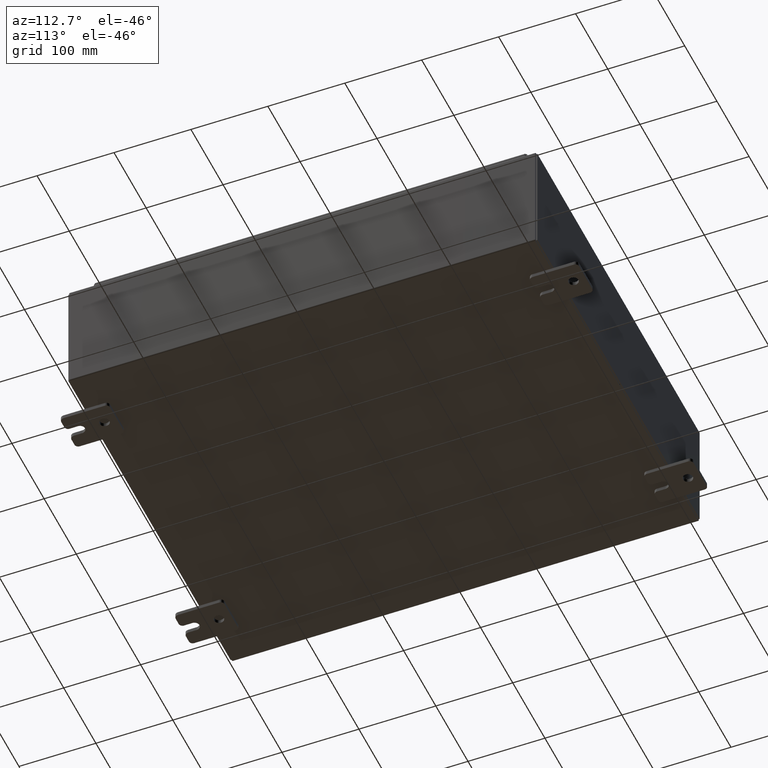
[diagram: clean part render]
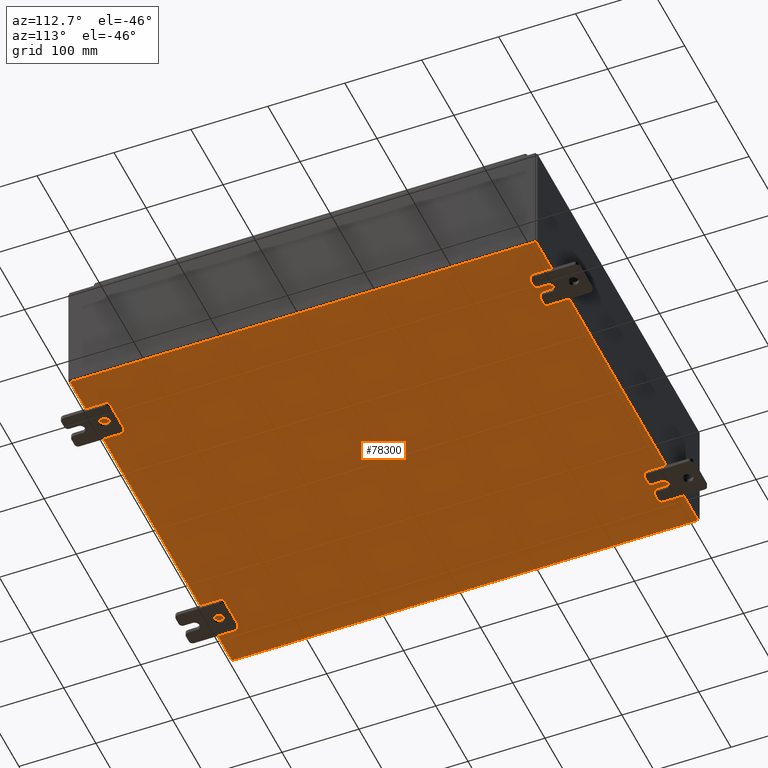
[diagram: same view with one face highlighted and labeled with its STEP entity id]
A machine part, auxiliary view. The second image highlights one B-rep face of the part: STEP entity #78300.
In plain terms, the highlighted planar face has unit normal (0, 0, -1).
Its self-contained STEP definition (entity closure, byte-faithful):
#2210 = CARTESIAN_POINT ( 'NONE',  ( -10.00000000000000000, -11.92530000000000000, -0.07470000000000000300 ) ) ;
#3336 = DIRECTION ( 'NONE',  ( 0.0000000000000000000, 0.0000000000000000000, -1.000000000000000000 ) ) ;
#5123 = EDGE_CURVE ( 'NONE', #49668, #81604, #40688, .T. ) ;
#7452 = ORIENTED_EDGE ( 'NONE', *, *, #98810, .F. ) ;
#8077 = CARTESIAN_POINT ( 'NONE',  ( 9.912300000000000100, 11.92530000000000000, -0.07469999999999994700 ) ) ;
#12121 = PLANE ( 'NONE',  #67338 ) ;
#15591 = FACE_OUTER_BOUND ( 'NONE', #66317, .T. ) ;
#16032 = VECTOR ( 'NONE', #54678, 39.37007874015748100 ) ;
#20938 = CARTESIAN_POINT ( 'NONE',  ( 0.0000000000000000000, 0.0000000000000000000, -0.07470000000000000300 ) ) ;
#29772 = DIRECTION ( 'NONE',  ( -1.000000000000000000, 0.0000000000000000000, -0.0000000000000000000 ) ) ;
#32389 = CARTESIAN_POINT ( 'NONE',  ( 9.912300000000000100, 11.92529999999999800, -0.07469999999999994700 ) ) ;
#36581 = LINE ( 'NONE', #2210, #16032 ) ;
#40688 = LINE ( 'NONE', #8077, #63982 ) ;
#42727 = ORIENTED_EDGE ( 'NONE', *, *, #74598, .F. ) ;
#44389 = LINE ( 'NONE', #89670, #67810 ) ;
#49668 = VERTEX_POINT ( 'NONE', #32389 ) ;
#53840 = VERTEX_POINT ( 'NONE', #97374 ) ;
#54678 = DIRECTION ( 'NONE',  ( 1.000000000000000000, 0.0000000000000000000, 0.0000000000000000000 ) ) ;
#59879 = VERTEX_POINT ( 'NONE', #85243 ) ;
#60574 = DIRECTION ( 'NONE',  ( -0.0000000000000000000, -1.000000000000000000, -0.0000000000000000000 ) ) ;
#62849 = LINE ( 'NONE', #73181, #86247 ) ;
#63982 = VECTOR ( 'NONE', #60574, 39.37007874015748100 ) ;
#66317 = EDGE_LOOP ( 'NONE', ( #42727, #101431, #7452, #69758 ) ) ;
#67338 = AXIS2_PLACEMENT_3D ( 'NONE', #20938, #3336, #29772 ) ;
#67810 = VECTOR ( 'NONE', #72037, 39.37007874015748100 ) ;
#69758 = ORIENTED_EDGE ( 'NONE', *, *, #5123, .T. ) ;
#70061 = CARTESIAN_POINT ( 'NONE',  ( 9.912300000000000100, -11.92530000000000000, -0.07470000000000000300 ) ) ;
#72037 = DIRECTION ( 'NONE',  ( -1.000000000000000000, -0.0000000000000000000, -0.0000000000000000000 ) ) ;
#72750 = EDGE_CURVE ( 'NONE', #59879, #53840, #62849, .T. ) ;
#73181 = CARTESIAN_POINT ( 'NONE',  ( -9.912300000000000100, -11.92530000000000000, -0.07469999999999994700 ) ) ;
#74598 = EDGE_CURVE ( 'NONE', #59879, #81604, #36581, .T. ) ;
#78300 = ADVANCED_FACE ( 'NONE', ( #15591 ), #12121, .T. ) ;
#81604 = VERTEX_POINT ( 'NONE', #70061 ) ;
#85243 = CARTESIAN_POINT ( 'NONE',  ( -9.912300000000000100, -11.92529999999999800, -0.07469999999999994700 ) ) ;
#86247 = VECTOR ( 'NONE', #100041, 39.37007874015748100 ) ;
#89670 = CARTESIAN_POINT ( 'NONE',  ( -10.00000000000000000, 11.92530000000000000, -0.07470000000000000300 ) ) ;
#97374 = CARTESIAN_POINT ( 'NONE',  ( -9.912300000000000100, 11.92530000000000000, -0.07470000000000000300 ) ) ;
#98810 = EDGE_CURVE ( 'NONE', #49668, #53840, #44389, .T. ) ;
#100041 = DIRECTION ( 'NONE',  ( -0.0000000000000000000, 1.000000000000000000, -0.0000000000000000000 ) ) ;
#101431 = ORIENTED_EDGE ( 'NONE', *, *, #72750, .T. ) ;